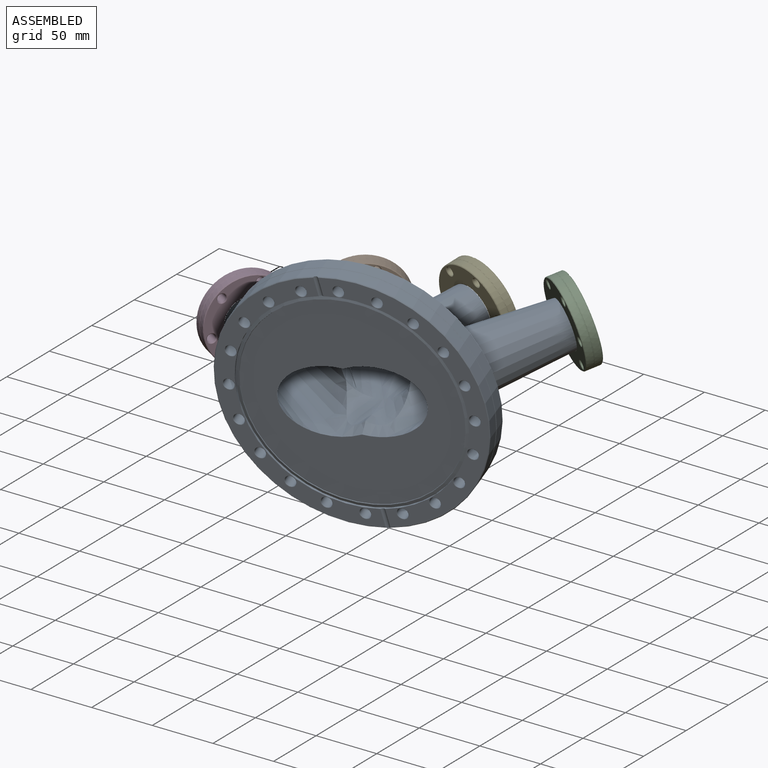
[diagram: assembled view]
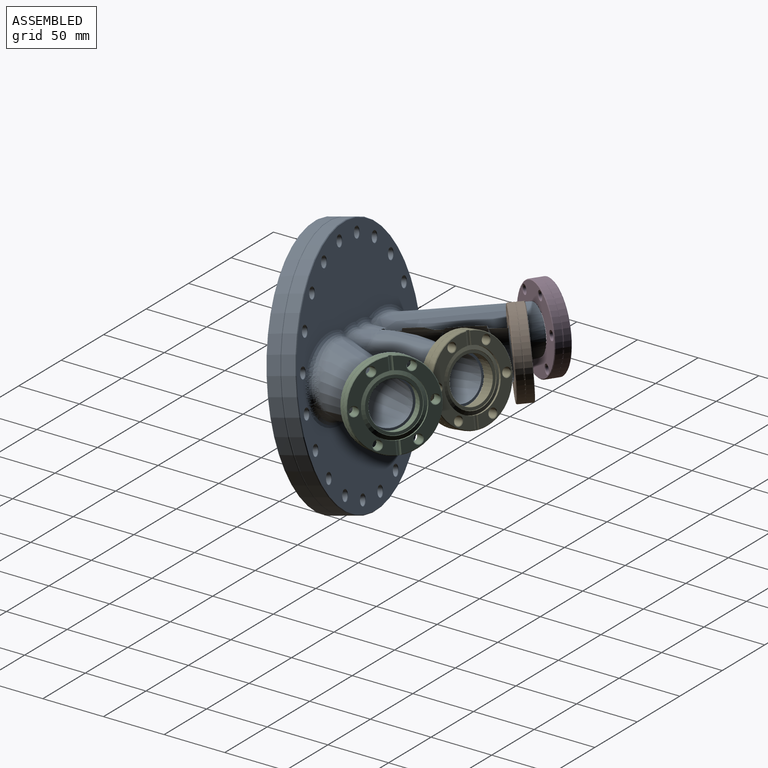
[diagram: assembled view, second angle]
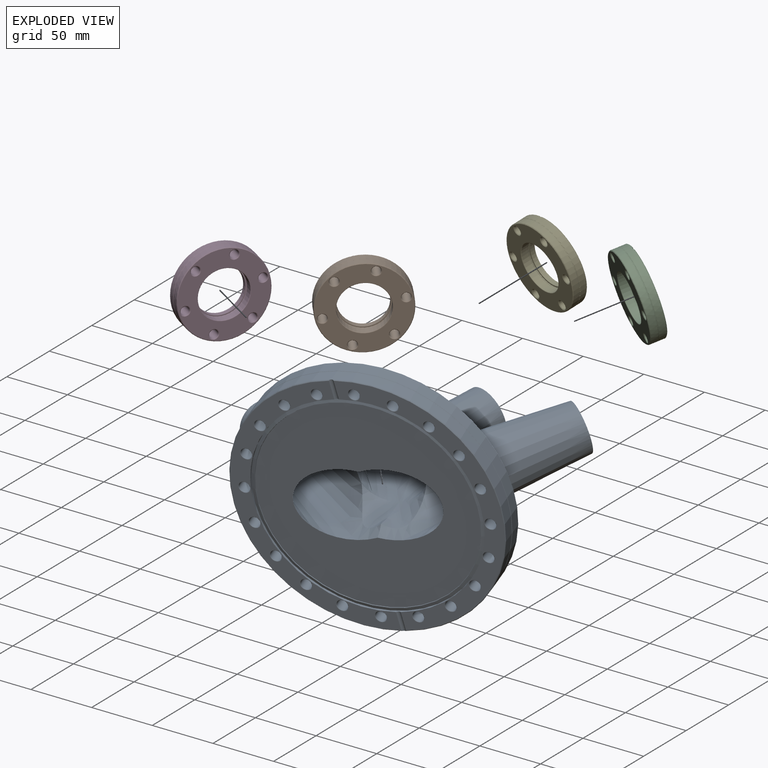
[diagram: exploded view]
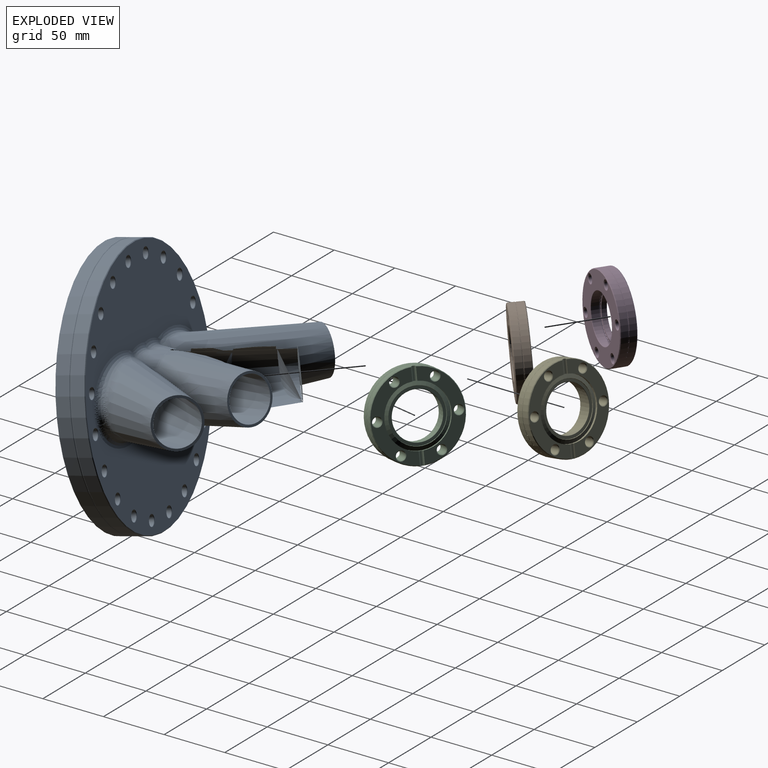
[diagram: exploded view, second angle]
ASSEMBLY  parts=5 mates=4
PART A: 113 faces, bbox 265.7x154.8x219.7 mm
  f0: cone r=17.4mm half-angle=4deg, axis (0.47,-0.89,0), area 462.1mm2, adj f1,f111,f112
  f1: cone r=17.4mm half-angle=4deg, axis (-0.47,-0.89,0), area 462.1mm2, adj f0,f2,f110
  f2: cone r=17.4mm half-angle=4.5deg, axis (0.72,-0.69,0), area 17308mm2, adj f1,f3,f5,f6,f109,f110,f111
  f3: cone r=17.4mm half-angle=4deg, axis (-0.47,-0.89,0), area 462.1mm2, adj f2,f4,f110
  f4: cone r=17.4mm half-angle=4deg, axis (0.47,-0.89,0), area 691.2mm2, adj f3,f5,f111,f112
  f5: cone r=17.4mm half-angle=4.5deg, axis (-0.72,-0.69,0), area 62.8mm2, adj f2,f4,f111
  f6: plane 165.37x165.37mm, normal (0,-1,0), area 16094.5mm2, adj f2,f7,f111
  f7: cone r=82.87mm half-angle=20deg, axis (0,-1,0), area 281.2mm2, adj f6,f8
  f8: cone r=85.72mm half-angle=70deg, axis (0,1,0), area 1610.6mm2, adj f7,f9
  f9: cylinder r=85.72mm len=171.45mm, axis (0,1,0), area 915.9mm2, adj f8,f10,f106,f107,f108
  f10: cylinder r=2.38mm len=15.51mm, axis (0,0,1), area 61.4mm2, adj f9,f11,f12,f105,f106,f108
  f11: cone r=101.22mm half-angle=45deg, axis (0,1,0), area 225.8mm2, adj f10,f12,f107,f108
  f12: cylinder r=101.22mm len=202.44mm, axis (0,-1,0), area 6504.8mm2, adj f10,f11,f13,f105,f107
  f13: torus R=101.47mm, axis (0,-1,0), area 675.5mm2, adj f12,f14
  f14: cylinder r=101.22mm len=202.44mm, axis (0,-1,0), area 6504.8mm2, adj f13,f15
  f15: cone r=100.71mm half-angle=45deg, axis (0,-1,0), area 455.8mm2, adj f14,f16
  f16: plane 201.49x201.49mm, normal (0,1,0), area 20785.2mm2, adj f15,f17,f39,f40,f41,f42,f43,f44
  f17: bspline ~74.21x65mm, area 1395.7mm2, adj f16,f18,f39,f44
  f18: cone r=19.3mm half-angle=4.5deg, axis (0.72,-0.69,0), area 13308.4mm2, adj f17,f19,f38,f39,f44,f109
  f19: bspline ~45.08x41.13mm, area 841.1mm2, adj f18,f20,f21,f37,f38,f44
  f20: bspline ~24.38x11.07mm, area 27.5mm2, adj f19,f21,f38
  f21: cone r=19.3mm half-angle=4deg, axis (0.47,-0.89,0), area 8093.7mm2, adj f19,f20,f22,f23,f37
  f22: plane 38.61x34.17mm, normal (-0.47,0.89,0), area 219.7mm2, adj f21,f110
  f23: bspline ~53.12x50.58mm, area 0mm2, adj f21,f24
  f24: cone r=19.3mm half-angle=4deg, axis (-0.47,-0.89,0), area 8094.8mm2, adj f23,f25,f34,f35,f36
  f25: bspline ~38.5x37.76mm, area 803.9mm2, adj f24,f26,f28,f32
  f26: sphere r=5mm, area 15.4mm2, adj f25,f27,f36
  f27: bspline ~21.15x11.46mm, area 73.3mm2, adj f26,f32,f41,f42
  f28: sphere r=5mm, area 15.4mm2, adj f25,f29,f35
  f29: bspline ~16.06x9.23mm, area 68mm2, adj f28,f30,f31,f32
  f30: sphere r=5mm, area 14.9mm2, adj f29,f40,f41
  f31: cone r=19.3mm half-angle=4deg, axis (0.47,-0.89,0), area 296mm2, adj f29,f35,f38,f40
  f32: cone r=19.3mm half-angle=4.5deg, axis (-0.72,-0.69,0), area 13255.4mm2, adj f25,f27,f29,f33,f41
  f33: plane 38.61x27.76mm, normal (0.72,0.69,0), area 219.7mm2, adj f32,f111
  f34: plane 38.61x34.17mm, normal (0.47,0.89,0), area 219.7mm2, adj f24,f112
  f35: bspline ~22.68x9.23mm, area 26.1mm2, adj f24,f28,f31
  f36: bspline ~23.15x9.71mm, area 26.1mm2, adj f24,f26,f42
  f37: bspline ~23.15x9.71mm, area 27.7mm2, adj f19,f21,f44
  f38: cone r=19.3mm half-angle=4deg, axis (-0.47,-0.89,0), area 328.9mm2, adj f18,f19,f20,f31,f39
  f39: bspline ~23.79x7.51mm, area 152.4mm2, adj f16,f17,f18,f38,f40
  f40: bspline ~21.84x6.87mm, area 146.2mm2, adj f16,f30,f31,f39
  f41: bspline ~74.18x64.98mm, area 1386.1mm2, adj f16,f27,f30,f32,f42
  f42: cone r=19.3mm half-angle=4deg, axis (0.47,-0.89,0), area 368.3mm2, adj f16,f27,f36,f41,f43
  f43: bspline ~22.19x2.99mm, area 15.9mm2, adj f16,f42,f44
  f44: cone r=19.3mm half-angle=4deg, axis (-0.47,-0.89,0), area 401.6mm2, adj f16,f17,f18,f19,f37,f43
  f45: cone r=4.22mm half-angle=45deg, axis (0,1,0), area 9.8mm2, adj f16,f46
  f46: cylinder r=4.22mm len=21.84mm, axis (0,-1,0), area 578.7mm2, adj f45,f47
  f47: cone r=4.47mm half-angle=45deg, axis (0,-1,0), area 9.8mm2, adj f46,f106
  f48: cone r=4.22mm half-angle=45deg, axis (0,1,0), area 9.8mm2, adj f16,f49
  f49: cylinder r=4.22mm len=21.84mm, axis (0,-1,0), area 578.7mm2, adj f48,f50
  f50: cone r=4.47mm half-angle=45deg, axis (0,-1,0), area 9.8mm2, adj f49,f106
  f51: cone r=4.22mm half-angle=45deg, axis (0,1,0), area 9.8mm2, adj f16,f52
  f52: cylinder r=4.22mm len=21.84mm, axis (0,-1,0), area 578.7mm2, adj f51,f53
  f53: cone r=4.47mm half-angle=45deg, axis (0,-1,0), area 9.8mm2, adj f52,f106
  f54: cone r=4.22mm half-angle=45deg, axis (0,1,0), area 9.8mm2, adj f16,f55
  f55: cylinder r=4.22mm len=21.84mm, axis (0,-1,0), area 578.7mm2, adj f54,f56
  f56: cone r=4.47mm half-angle=45deg, axis (0,-1,0), area 9.8mm2, adj f55,f106
  f57: cone r=4.22mm half-angle=45deg, axis (0,1,0), area 9.8mm2, adj f16,f58
  f58: cylinder r=4.22mm len=21.84mm, axis (0,-1,0), area 578.7mm2, adj f57,f59
  f59: cone r=4.47mm half-angle=45deg, axis (0,-1,0), area 9.8mm2, adj f58,f106
  f60: cone r=4.22mm half-angle=45deg, axis (0,1,0), area 9.8mm2, adj f16,f61
  f61: cylinder r=4.22mm len=21.84mm, axis (0,-1,0), area 578.7mm2, adj f60,f62
  f62: cone r=4.47mm half-angle=45deg, axis (0,-1,0), area 9.8mm2, adj f61,f106
  f63: cone r=4.22mm half-angle=45deg, axis (0,1,0), area 9.8mm2, adj f16,f64
  f64: cylinder r=4.22mm len=21.84mm, axis (0,-1,0), area 578.7mm2, adj f63,f65
  f65: cone r=4.47mm half-angle=45deg, axis (0,-1,0), area 9.8mm2, adj f64,f106
  f66: cone r=4.22mm half-angle=45deg, axis (0,1,0), area 9.8mm2, adj f16,f67
  f67: cylinder r=4.22mm len=21.84mm, axis (0,-1,0), area 578.7mm2, adj f66,f68
  f68: cone r=4.47mm half-angle=45deg, axis (0,-1,0), area 9.8mm2, adj f67,f106
  f69: cone r=4.22mm half-angle=45deg, axis (0,1,0), area 9.8mm2, adj f16,f70
  f70: cylinder r=4.22mm len=21.84mm, axis (0,-1,0), area 578.7mm2, adj f69,f71
  f71: cone r=4.47mm half-angle=45deg, axis (0,-1,0), area 9.8mm2, adj f70,f106
  f72: cone r=4.22mm half-angle=45deg, axis (0,1,0), area 9.8mm2, adj f16,f73
  f73: cylinder r=4.22mm len=21.84mm, axis (0,-1,0), area 578.7mm2, adj f72,f74
  f74: cone r=4.47mm half-angle=45deg, axis (0,-1,0), area 9.8mm2, adj f73,f106
  f75: cone r=4.22mm half-angle=45deg, axis (0,1,0), area 9.8mm2, adj f16,f76
  f76: cylinder r=4.22mm len=21.84mm, axis (0,-1,0), area 578.7mm2, adj f75,f77
  f77: cone r=4.47mm half-angle=45deg, axis (0,-1,0), area 9.8mm2, adj f76,f108
  f78: cone r=4.22mm half-angle=45deg, axis (0,1,0), area 9.8mm2, adj f16,f79
  f79: cylinder r=4.22mm len=21.84mm, axis (0,-1,0), area 578.7mm2, adj f78,f80
  f80: cone r=4.47mm half-angle=45deg, axis (0,-1,0), area 9.8mm2, adj f79,f108
  f81: cone r=4.22mm half-angle=45deg, axis (0,1,0), area 9.8mm2, adj f16,f82
  f82: cylinder r=4.22mm len=21.84mm, axis (0,-1,0), area 578.7mm2, adj f81,f83
  f83: cone r=4.47mm half-angle=45deg, axis (0,-1,0), area 9.8mm2, adj f82,f108
  f84: cone r=4.22mm half-angle=45deg, axis (0,1,0), area 9.8mm2, adj f16,f85
  f85: cylinder r=4.22mm len=21.84mm, axis (0,-1,0), area 578.7mm2, adj f84,f86
  f86: cone r=4.47mm half-angle=45deg, axis (0,-1,0), area 9.8mm2, adj f85,f108
  f87: cone r=4.22mm half-angle=45deg, axis (0,1,0), area 9.8mm2, adj f16,f88
  f88: cylinder r=4.22mm len=21.84mm, axis (0,-1,0), area 578.7mm2, adj f87,f89
  f89: cone r=4.47mm half-angle=45deg, axis (0,-1,0), area 9.8mm2, adj f88,f108
  f90: cone r=4.22mm half-angle=45deg, axis (0,1,0), area 9.8mm2, adj f16,f91
  f91: cylinder r=4.22mm len=21.84mm, axis (0,-1,0), area 578.7mm2, adj f90,f92
  f92: cone r=4.47mm half-angle=45deg, axis (0,-1,0), area 9.8mm2, adj f91,f108
  f93: cone r=4.22mm half-angle=45deg, axis (0,1,0), area 9.8mm2, adj f16,f94
  f94: cylinder r=4.22mm len=21.84mm, axis (0,-1,0), area 578.7mm2, adj f93,f95
  f95: cone r=4.47mm half-angle=45deg, axis (0,-1,0), area 9.8mm2, adj f94,f108
  f96: cone r=4.22mm half-angle=45deg, axis (0,1,0), area 9.8mm2, adj f16,f97
  f97: cylinder r=4.22mm len=21.84mm, axis (0,-1,0), area 578.7mm2, adj f96,f98
  f98: cone r=4.47mm half-angle=45deg, axis (0,-1,0), area 9.8mm2, adj f97,f108
  f99: cone r=4.22mm half-angle=45deg, axis (0,1,0), area 9.8mm2, adj f16,f100
  f100: cylinder r=4.22mm len=21.84mm, axis (0,-1,0), area 578.7mm2, adj f99,f101
  f101: cone r=4.47mm half-angle=45deg, axis (0,-1,0), area 9.8mm2, adj f100,f108
  f102: cone r=4.22mm half-angle=45deg, axis (0,1,0), area 9.8mm2, adj f16,f103
  f103: cylinder r=4.22mm len=21.84mm, axis (0,-1,0), area 578.7mm2, adj f102,f104
  f104: cone r=4.47mm half-angle=45deg, axis (0,-1,0), area 9.8mm2, adj f103,f108
  f105: cone r=101.22mm half-angle=45deg, axis (0,1,0), area 225.8mm2, adj f10,f12,f106,f107
  f106: plane 201.39x98.94mm, normal (0,-1,0), area 3707.8mm2, adj f9,f10,f47,f50,f53,f56,f59,f62
  f107: cylinder r=2.38mm len=15.51mm, axis (0,0,-1), area 61.4mm2, adj f9,f11,f12,f105,f106,f108
  f108: plane 201.39x98.94mm, normal (0,-1,0), area 3707.8mm2, adj f9,f10,f11,f77,f80,f83,f86,f89
  f109: plane 38.61x27.76mm, normal (-0.72,0.69,0), area 219.7mm2, adj f2,f18
  f110: cone r=17.4mm half-angle=4deg, axis (0.47,-0.89,0), area 8819.6mm2, adj f1,f2,f3,f22,f112
  f111: cone r=17.4mm half-angle=4.5deg, axis (-0.72,-0.69,0), area 17304.1mm2, adj f0,f2,f4,f5,f6,f33,f112
  f112: cone r=17.4mm half-angle=4deg, axis (-0.47,-0.89,0), area 8820.2mm2, adj f0,f4,f34,f110,f111
PART B: 41 faces, bbox 75.3x12.7x75.3 mm
  f0: cylinder r=34.54mm len=69.09mm, axis (0,-1,0), area 1172.5mm2, adj f1,f2,f5,f11,f36
  f1: cylinder r=2.38mm len=10.46mm, axis (0,0,1), area 41.3mm2, adj f0,f2,f3,f4,f5,f6
  f2: cone r=34.54mm half-angle=45deg, axis (0,1,0), area 75.3mm2, adj f0,f1,f3,f11
  f3: plane 67.98x32.27mm, normal (0,-1,0), area 728.6mm2, adj f1,f2,f4,f11,f12,f15,f18
  f4: cylinder r=24.13mm len=48.26mm, axis (0,1,0), area 275.3mm2, adj f1,f3,f6,f11,f38
  f5: cone r=34.54mm half-angle=45deg, axis (0,1,0), area 75.3mm2, adj f0,f1,f6,f11
  f6: plane 67.98x32.27mm, normal (0,-1,0), area 728.6mm2, adj f1,f4,f5,f11,f21,f24,f27
  f7: cylinder r=34.54mm len=69.09mm, axis (0,-1,0), area 1172.5mm2, adj f33,f36
  f8: plane 68.07x68.07mm, normal (0,1,0), area 2139.2mm2, adj f13,f16,f19,f22,f25,f28,f30,f33
  f9: cylinder r=19.18mm len=38.35mm, axis (0,1,0), area 696.9mm2, adj f30,f35
  f10: cylinder r=18.29mm len=36.58mm, axis (0,-1,0), area 423.2mm2, adj f31,f32
  f11: cylinder r=2.38mm len=10.46mm, axis (0,0,-1), area 41.3mm2, adj f0,f2,f3,f4,f5,f6
  f12: cone r=3.87mm half-angle=45deg, axis (0,-1,0), area 16.3mm2, adj f3,f14
  f13: cone r=3.37mm half-angle=45deg, axis (0,1,0), area 16.3mm2, adj f8,f14
  f14: cylinder r=3.37mm len=11.68mm, axis (0,-1,0), area 247.1mm2, adj f12,f13
  f15: cone r=3.87mm half-angle=45deg, axis (0,-1,0), area 16.3mm2, adj f3,f17
  f16: cone r=3.37mm half-angle=45deg, axis (0,1,0), area 16.3mm2, adj f8,f17
  f17: cylinder r=3.37mm len=11.68mm, axis (0,-1,0), area 247.1mm2, adj f15,f16
  f18: cone r=3.87mm half-angle=45deg, axis (0,-1,0), area 16.3mm2, adj f3,f20
  f19: cone r=3.37mm half-angle=45deg, axis (0,1,0), area 16.3mm2, adj f8,f20
  f20: cylinder r=3.37mm len=11.68mm, axis (0,-1,0), area 247.1mm2, adj f18,f19
  f21: cone r=3.87mm half-angle=45deg, axis (0,-1,0), area 16.3mm2, adj f6,f23
  f22: cone r=3.37mm half-angle=45deg, axis (0,1,0), area 16.3mm2, adj f8,f23
  f23: cylinder r=3.37mm len=11.68mm, axis (0,-1,0), area 247.1mm2, adj f21,f22
  f24: cone r=3.87mm half-angle=45deg, axis (0,-1,0), area 16.3mm2, adj f6,f26
  f25: cone r=3.37mm half-angle=45deg, axis (0,1,0), area 16.3mm2, adj f8,f26
  f26: cylinder r=3.37mm len=11.68mm, axis (0,-1,0), area 247.1mm2, adj f24,f25
  f27: cone r=3.87mm half-angle=45deg, axis (0,-1,0), area 16.3mm2, adj f6,f29
  f28: cone r=3.37mm half-angle=45deg, axis (0,1,0), area 16.3mm2, adj f8,f29
  f29: cylinder r=3.37mm len=11.68mm, axis (0,-1,0), area 247.1mm2, adj f27,f28
  f30: torus R=19.69mm, axis (0,1,0), area 97.1mm2, adj f8,f9
  f31: torus R=18.49mm, axis (0,-1,0), area 36.8mm2, adj f10,f40
  f32: torus R=18.54mm, axis (0,1,0), area 46.1mm2, adj f10,f39
  f33: cone r=34.04mm half-angle=45deg, axis (0,-1,0), area 154.8mm2, adj f7,f8
  f34: torus R=19.18mm, axis (0,-1,0), area 99.1mm2, adj f35,f40
  f35: cone r=19.18mm half-angle=32deg, axis (0,-1,0), area 74.1mm2, adj f9,f34
  f36: torus R=34.8mm, axis (0,-1,0), area 229.8mm2, adj f0,f7
  f37: cone r=20.96mm half-angle=20deg, axis (0,-1,0), area 70.9mm2, adj f38,f39
  f38: cone r=24.13mm half-angle=70deg, axis (0,1,0), area 478.6mm2, adj f4,f37
  f39: plane 41.54x41.54mm, normal (0,-1,0), area 275.2mm2, adj f32,f37
  f40: plane 38.35x38.35mm, normal (0,1,0), area 81.2mm2, adj f31,f34
PART C: same geometry as B
PART D: same geometry as B
PART E: same geometry as B
PLACE A rot(axis=(0.62,-0.53,0.59),18.6deg) t=(-95.34,257.18,-34.39)mm
PLACE B rot(axis=(0.11,0.08,-0.99),141.6deg) t=(-160.31,356.49,-22.58)mm
PLACE C rot(axis=(-0.95,0.3,-0.04),165.7deg) t=(5.57,366.32,5.07)mm
PLACE D rot(axis=(0.13,0.07,-0.99),123.6deg) t=(-234.01,324.5,-40.93)mm
PLACE E rot(axis=(-0.06,-0.12,0.99),163.4deg) t=(-75.63,371.39,-6.29)mm
MATE fastened A.f2 <-> D.f9  axis (-0.84,0.55,-0.01) through (-228.7,321.03,-40.87)mm
MATE fastened A.f5 <-> C.f9  axis (0.55,0.79,0.26) through (2.33,361.69,3.56)mm
MATE fastened A.f1 <-> E.f9  axis (-0.27,-0.93,-0.25) through (-77.34,365.48,-7.86)mm
MATE fastened A.f0 <-> B.f9  axis (-0.63,0.77,0.07) through (-156.3,351.58,-23.04)mm
